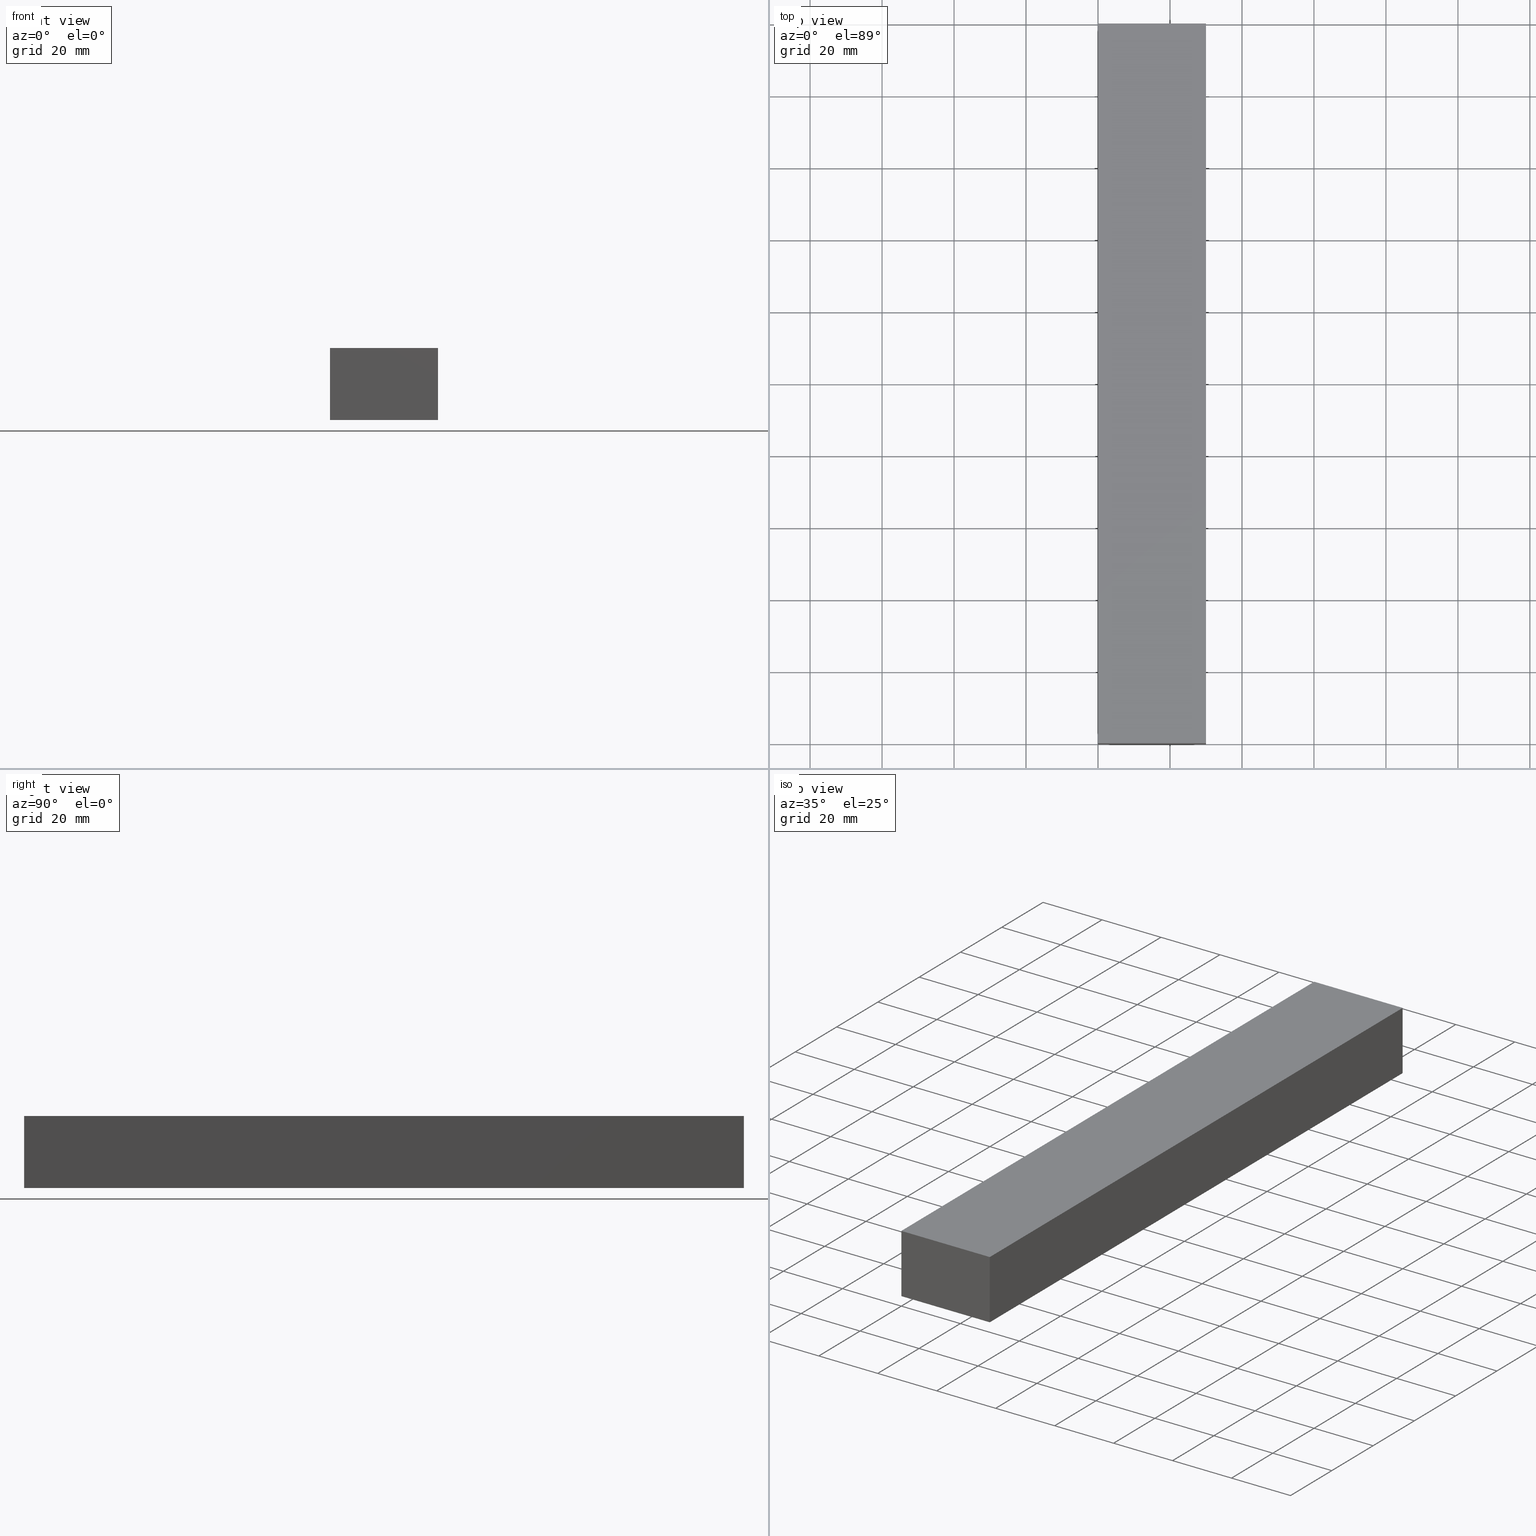
[diagram: canonical four-view strip — front | top / right | iso, engineering-drawing reading convention]
A machine part, canonical four-view strip (front | top / right | iso — engineering-drawing reading convention). The complete STEP part file that produces these views, byte-faithful:
ISO-10303-21;
HEADER;
FILE_DESCRIPTION (( 'STEP AP214' ),
    '1' );
FILE_NAME ('TM_340W_18.STEP',
    '2016-05-09T08:11:36',
    ( '' ),
    ( '' ),
    'SwSTEP 2.0',
    'SolidWorks 2015',
    '' );
FILE_SCHEMA (( 'AUTOMOTIVE_DESIGN' ));
ENDSEC;

DATA;
#1 = DIRECTION ( 'NONE',  ( 0.0000000000000000000, 0.0000000000000000000, 1.000000000000000000 ) ) ;
#2 = VECTOR ( 'NONE', #78, 1000.000000000000000 ) ;
#3 = ORIENTED_EDGE ( 'NONE', *, *, #127, .F. ) ;
#4 = AXIS2_PLACEMENT_3D ( 'NONE', #168, #38, #77 ) ;
#5 = PRODUCT ( 'TM_340W_18', 'TM_340W_18', '', ( #119 ) ) ;
#6 = EDGE_LOOP ( 'NONE', ( #106, #48, #93, #238 ) ) ;
#7 = PRODUCT_DEFINITION_SHAPE ( 'NONE', 'NONE',  #59 ) ;
#8 = LINE ( 'NONE', #63, #120 ) ;
#9 =( NAMED_UNIT ( * ) SI_UNIT ( $, .STERADIAN. ) SOLID_ANGLE_UNIT ( ) );
#10 = EDGE_CURVE ( 'NONE', #144, #17, #163, .T. ) ;
#11 = ORIENTED_EDGE ( 'NONE', *, *, #70, .T. ) ;
#12 = PLANE ( 'NONE',  #160 ) ;
#13 = STYLED_ITEM ( 'NONE', ( #122 ), #117 ) ;
#14 = DIRECTION ( 'NONE',  ( 1.000000000000000000, 0.0000000000000000000, 0.0000000000000000000 ) ) ;
#15 = AXIS2_PLACEMENT_3D ( 'NONE', #179, #96, #195 ) ;
#16 = ADVANCED_FACE ( 'NONE', ( #226 ), #12, .T. ) ;
#17 = VERTEX_POINT ( 'NONE', #234 ) ;
#18 =( NAMED_UNIT ( * ) PLANE_ANGLE_UNIT ( ) SI_UNIT ( $, .RADIAN. ) );
#19 = DIRECTION ( 'NONE',  ( 0.0000000000000000000, 1.000000000000000000, 0.0000000000000000000 ) ) ;
#20 = DIRECTION ( 'NONE',  ( 0.0000000000000000000, 0.0000000000000000000, 1.000000000000000000 ) ) ;
#21 = VERTEX_POINT ( 'NONE', #97 ) ;
#22 = PLANE ( 'NONE',  #26 ) ;
#23 = LINE ( 'NONE', #37, #108 ) ;
#24 = ORIENTED_EDGE ( 'NONE', *, *, #200, .F. ) ;
#25 = VECTOR ( 'NONE', #155, 1000.000000000000000 ) ;
#26 = AXIS2_PLACEMENT_3D ( 'NONE', #202, #141, #39 ) ;
#27 = SHAPE_REPRESENTATION_RELATIONSHIP ( 'NONE' , 'NONE' ,  #204, #49 ) ;
#28 = VECTOR ( 'NONE', #216, 1000.000000000000000 ) ;
#29 = PRODUCT_DEFINITION_CONTEXT ( 'detailed design', #206, 'design' ) ;
#30 =( GEOMETRIC_REPRESENTATION_CONTEXT ( 3 ) GLOBAL_UNCERTAINTY_ASSIGNED_CONTEXT ( ( #133 ) ) GLOBAL_UNIT_ASSIGNED_CONTEXT ( ( #113, #177, #82 ) ) REPRESENTATION_CONTEXT ( 'NONE', 'WORKASPACE' ) );
#31 = CARTESIAN_POINT ( 'NONE',  ( 0.0000000000000000000, 0.0000000000000000000, 10.00000000000000000 ) ) ;
#32 = ORIENTED_EDGE ( 'NONE', *, *, #158, .F. ) ;
#33 = FILL_AREA_STYLE ('',( #231 ) ) ;
#34 = APPLICATION_PROTOCOL_DEFINITION ( 'draft international standard', 'automotive_design', 1998, #85 ) ;
#35 = ORIENTED_EDGE ( 'NONE', *, *, #159, .T. ) ;
#36 = ADVANCED_FACE ( 'NONE', ( #84 ), #22, .F. ) ;
#37 = CARTESIAN_POINT ( 'NONE',  ( 0.0000000000000000000, 0.0000000000000000000, 10.00000000000000000 ) ) ;
#38 = DIRECTION ( 'NONE',  ( 0.0000000000000000000, 0.0000000000000000000, 1.000000000000000000 ) ) ;
#39 = DIRECTION ( 'NONE',  ( 1.000000000000000000, 0.0000000000000000000, 0.0000000000000000000 ) ) ;
#40 = DIRECTION ( 'NONE',  ( 0.0000000000000000000, 0.0000000000000000000, 1.000000000000000000 ) ) ;
#41 = VECTOR ( 'NONE', #185, 1000.000000000000000 ) ;
#42 = PRESENTATION_LAYER_ASSIGNMENT (  '', '', ( #13 ) ) ;
#43 = CARTESIAN_POINT ( 'NONE',  ( 0.0000000000000000000, 0.0000000000000000000, -10.00000000000000000 ) ) ;
#44 = PRODUCT_DEFINITION_CONTEXT ( 'detailed design', #85, 'design' ) ;
#45 = ORIENTED_EDGE ( 'NONE', *, *, #124, .T. ) ;
#46 = AXIS2_PLACEMENT_3D ( 'NONE', #211, #143, #183 ) ;
#47 = SHAPE_REPRESENTATION ( 'TM_340W_18', ( #46, #15 ), #30 ) ;
#48 = ORIENTED_EDGE ( 'NONE', *, *, #229, .F. ) ;
#49 = ADVANCED_BREP_SHAPE_REPRESENTATION ( '', ( #117, #186 ), #166 ) ;
#50 = VERTEX_POINT ( 'NONE', #99 ) ;
#51 = DIRECTION ( 'NONE',  ( -1.000000000000000000, 0.0000000000000000000, 0.0000000000000000000 ) ) ;
#52 = CARTESIAN_POINT ( 'NONE',  ( 30.00000000000000000, 0.0000000000000000000, -10.00000000000000000 ) ) ;
#53 =( NAMED_UNIT ( * ) PLANE_ANGLE_UNIT ( ) SI_UNIT ( $, .RADIAN. ) );
#54 = SURFACE_STYLE_USAGE ( .BOTH. , #146 ) ;
#55 = MECHANICAL_DESIGN_GEOMETRIC_PRESENTATION_REPRESENTATION (  '', ( #13 ), #68 ) ;
#56 = EDGE_LOOP ( 'NONE', ( #80, #192, #62, #210 ) ) ;
#57 = DIRECTION ( 'NONE',  ( 0.0000000000000000000, 0.0000000000000000000, 1.000000000000000000 ) ) ;
#58 = LINE ( 'NONE', #87, #2 ) ;
#59 = PRODUCT_DEFINITION ( 'UNKNOWN', '', #64, #29 ) ;
#60 = COLOUR_RGB ( '',0.7921568627450980000, 0.8196078431372548800, 0.9294117647058823800 ) ;
#61 = DIRECTION ( 'NONE',  ( 0.0000000000000000000, 1.000000000000000000, 0.0000000000000000000 ) ) ;
#62 = ORIENTED_EDGE ( 'NONE', *, *, #10, .F. ) ;
#63 = CARTESIAN_POINT ( 'NONE',  ( 30.00000000000000000, 0.0000000000000000000, 10.00000000000000000 ) ) ;
#64 = PRODUCT_DEFINITION_FORMATION_WITH_SPECIFIED_SOURCE ( 'ANY', '', #225, .NOT_KNOWN. ) ;
#65 =( LENGTH_UNIT ( ) NAMED_UNIT ( * ) SI_UNIT ( .MILLI., .METRE. ) );
#66 = FILL_AREA_STYLE_COLOUR ( '', #67 ) ;
#67 = COLOUR_RGB ( '',0.7921568627450980000, 0.8196078431372548800, 0.9294117647058823800 ) ;
#68 =( GEOMETRIC_REPRESENTATION_CONTEXT ( 3 ) GLOBAL_UNCERTAINTY_ASSIGNED_CONTEXT ( ( #79 ) ) GLOBAL_UNIT_ASSIGNED_CONTEXT ( ( #65, #81, #9 ) ) REPRESENTATION_CONTEXT ( 'NONE', 'WORKASPACE' ) );
#69 = SURFACE_STYLE_FILL_AREA ( #33 ) ;
#70 = EDGE_CURVE ( 'NONE', #156, #50, #128, .T. ) ;
#71 = EDGE_LOOP ( 'NONE', ( #176, #126, #11, #182 ) ) ;
#72 = PLANE ( 'NONE',  #135 ) ;
#73 = CARTESIAN_POINT ( 'NONE',  ( 0.0000000000000000000, 200.0000000000000000, 10.00000000000000000 ) ) ;
#74 = PRODUCT_RELATED_PRODUCT_CATEGORY ( 'part', '', ( #225 ) ) ;
#75 = ORIENTED_EDGE ( 'NONE', *, *, #205, .T. ) ;
#76 = DIRECTION ( 'NONE',  ( 0.0000000000000000000, 0.0000000000000000000, 1.000000000000000000 ) ) ;
#77 = DIRECTION ( 'NONE',  ( 1.000000000000000000, 0.0000000000000000000, 0.0000000000000000000 ) ) ;
#78 = DIRECTION ( 'NONE',  ( 1.000000000000000000, 0.0000000000000000000, 0.0000000000000000000 ) ) ;
#79 = UNCERTAINTY_MEASURE_WITH_UNIT (LENGTH_MEASURE( 1.000000000000000100E-005 ), #65, 'distance_accuracy_value', 'NONE');
#80 = ORIENTED_EDGE ( 'NONE', *, *, #70, .F. ) ;
#81 =( NAMED_UNIT ( * ) PLANE_ANGLE_UNIT ( ) SI_UNIT ( $, .RADIAN. ) );
#82 =( NAMED_UNIT ( * ) SI_UNIT ( $, .STERADIAN. ) SOLID_ANGLE_UNIT ( ) );
#83 = DIRECTION ( 'NONE',  ( 1.000000000000000000, 0.0000000000000000000, 0.0000000000000000000 ) ) ;
#84 = FACE_OUTER_BOUND ( 'NONE', #56, .T. ) ;
#85 = APPLICATION_CONTEXT ( 'automotive_design' ) ;
#86 = FACE_OUTER_BOUND ( 'NONE', #212, .T. ) ;
#87 = CARTESIAN_POINT ( 'NONE',  ( 0.0000000000000000000, 0.0000000000000000000, -10.00000000000000000 ) ) ;
#88 = PRODUCT_DEFINITION ( 'UNKNOWN', '', #100, #44 ) ;
#89 = CLOSED_SHELL ( 'NONE', ( #16, #196, #209, #140, #36, #130 ) ) ;
#90 = VECTOR ( 'NONE', #51, 1000.000000000000000 ) ;
#91 = LINE ( 'NONE', #150, #41 ) ;
#92 = VECTOR ( 'NONE', #20, 1000.000000000000000 ) ;
#93 = ORIENTED_EDGE ( 'NONE', *, *, #10, .T. ) ;
#94 = FACE_OUTER_BOUND ( 'NONE', #233, .T. ) ;
#95 = CARTESIAN_POINT ( 'NONE',  ( 30.00000000000000000, 0.0000000000000000000, -10.00000000000000000 ) ) ;
#96 = DIRECTION ( 'NONE',  ( 0.0000000000000000000, 0.0000000000000000000, 1.000000000000000000 ) ) ;
#97 = CARTESIAN_POINT ( 'NONE',  ( 30.00000000000000000, 200.0000000000000000, 10.00000000000000000 ) ) ;
#98 = VERTEX_POINT ( 'NONE', #105 ) ;
#99 = CARTESIAN_POINT ( 'NONE',  ( 0.0000000000000000000, 0.0000000000000000000, -10.00000000000000000 ) ) ;
#100 = PRODUCT_DEFINITION_FORMATION_WITH_SPECIFIED_SOURCE ( 'ANY', '', #5, .NOT_KNOWN. ) ;
#101 = APPLICATION_PROTOCOL_DEFINITION ( 'draft international standard', 'automotive_design', 1998, #218 ) ;
#102 = CARTESIAN_POINT ( 'NONE',  ( 30.00000000000000000, 0.0000000000000000000, -10.00000000000000000 ) ) ;
#103 = DIRECTION ( 'NONE',  ( 1.000000000000000000, 0.0000000000000000000, 0.0000000000000000000 ) ) ;
#104 = FACE_OUTER_BOUND ( 'NONE', #224, .T. ) ;
#105 = CARTESIAN_POINT ( 'NONE',  ( 0.0000000000000000000, 200.0000000000000000, 10.00000000000000000 ) ) ;
#106 = ORIENTED_EDGE ( 'NONE', *, *, #205, .F. ) ;
#107 = APPLICATION_PROTOCOL_DEFINITION ( 'draft international standard', 'automotive_design', 1998, #206 ) ;
#108 = VECTOR ( 'NONE', #103, 1000.000000000000000 ) ;
#109 = SHAPE_DEFINITION_REPRESENTATION ( #7, #204 ) ;
#110 = AXIS2_PLACEMENT_3D ( 'NONE', #165, #148, #14 ) ;
#111 = ORIENTED_EDGE ( 'NONE', *, *, #229, .T. ) ;
#112 = PRODUCT_RELATED_PRODUCT_CATEGORY ( 'part', '', ( #5 ) ) ;
#113 =( LENGTH_UNIT ( ) NAMED_UNIT ( * ) SI_UNIT ( .MILLI., .METRE. ) );
#114 = APPLICATION_CONTEXT ( 'automotive_design' ) ;
#115 = DIRECTION ( 'NONE',  ( -1.000000000000000000, 0.0000000000000000000, 0.0000000000000000000 ) ) ;
#116 = DIRECTION ( 'NONE',  ( 0.0000000000000000000, -1.000000000000000000, 0.0000000000000000000 ) ) ;
#117 = MANIFOLD_SOLID_BREP ( '���߰�1', #89 ) ;
#118 = CARTESIAN_POINT ( 'NONE',  ( 30.00000000000000000, 200.0000000000000000, -10.00000000000000000 ) ) ;
#119 = PRODUCT_CONTEXT ( 'NONE', #218, 'mechanical' ) ;
#120 = VECTOR ( 'NONE', #219, 1000.000000000000000 ) ;
#121 = PLANE ( 'NONE',  #175 ) ;
#122 = PRESENTATION_STYLE_ASSIGNMENT (( #123 ) ) ;
#123 = SURFACE_STYLE_USAGE ( .BOTH. , #223 ) ;
#124 = EDGE_CURVE ( 'NONE', #50, #144, #58, .T. ) ;
#125 = UNCERTAINTY_MEASURE_WITH_UNIT (LENGTH_MEASURE( 1.000000000000000100E-005 ), #131, 'distance_accuracy_value', 'NONE');
#126 = ORIENTED_EDGE ( 'NONE', *, *, #213, .F. ) ;
#127 = EDGE_CURVE ( 'NONE', #50, #138, #153, .T. ) ;
#128 = LINE ( 'NONE', #172, #25 ) ;
#129 = LINE ( 'NONE', #197, #142 ) ;
#130 = ADVANCED_FACE ( 'NONE', ( #94 ), #145, .T. ) ;
#131 =( LENGTH_UNIT ( ) NAMED_UNIT ( * ) SI_UNIT ( .MILLI., .METRE. ) );
#132 = DIRECTION ( 'NONE',  ( 1.000000000000000000, 0.0000000000000000000, 0.0000000000000000000 ) ) ;
#133 = UNCERTAINTY_MEASURE_WITH_UNIT (LENGTH_MEASURE( 1.000000000000000100E-005 ), #113, 'distance_accuracy_value', 'NONE');
#134 = CARTESIAN_POINT ( 'NONE',  ( 0.0000000000000000000, 0.0000000000000000000, -10.00000000000000000 ) ) ;
#135 = AXIS2_PLACEMENT_3D ( 'NONE', #134, #116, #236 ) ;
#136 = APPLICATION_PROTOCOL_DEFINITION ( 'draft international standard', 'automotive_design', 1998, #114 ) ;
#137 = EDGE_CURVE ( 'NONE', #98, #138, #164, .T. ) ;
#138 = VERTEX_POINT ( 'NONE', #31 ) ;
#139 = CARTESIAN_POINT ( 'NONE',  ( 0.0000000000000000000, 200.0000000000000000, -10.00000000000000000 ) ) ;
#140 = ADVANCED_FACE ( 'NONE', ( #86 ), #72, .T. ) ;
#141 = DIRECTION ( 'NONE',  ( 0.0000000000000000000, 0.0000000000000000000, 1.000000000000000000 ) ) ;
#142 = VECTOR ( 'NONE', #198, 1000.000000000000000 ) ;
#143 = DIRECTION ( 'NONE',  ( 0.0000000000000000000, 0.0000000000000000000, 1.000000000000000000 ) ) ;
#144 = VERTEX_POINT ( 'NONE', #232 ) ;
#145 = PLANE ( 'NONE',  #110 ) ;
#146 = SURFACE_SIDE_STYLE ('',( #69 ) ) ;
#147 = PRODUCT_DEFINITION_SHAPE ( 'NONE', 'NONE',  #88 ) ;
#148 = DIRECTION ( 'NONE',  ( 0.0000000000000000000, 0.0000000000000000000, 1.000000000000000000 ) ) ;
#149 = ORIENTED_EDGE ( 'NONE', *, *, #217, .T. ) ;
#150 = CARTESIAN_POINT ( 'NONE',  ( 30.00000000000000000, 200.0000000000000000, 10.00000000000000000 ) ) ;
#151 =( LENGTH_UNIT ( ) NAMED_UNIT ( * ) SI_UNIT ( .MILLI., .METRE. ) );
#152 = VECTOR ( 'NONE', #57, 1000.000000000000000 ) ;
#153 = LINE ( 'NONE', #43, #92 ) ;
#154 = SHAPE_DEFINITION_REPRESENTATION ( #147, #47 ) ;
#155 = DIRECTION ( 'NONE',  ( 0.0000000000000000000, -1.000000000000000000, 0.0000000000000000000 ) ) ;
#156 = VERTEX_POINT ( 'NONE', #139 ) ;
#157 = AXIS2_PLACEMENT_3D ( 'NONE', #199, #19, #1 ) ;
#158 = EDGE_CURVE ( 'NONE', #138, #189, #23, .T. ) ;
#159 = EDGE_CURVE ( 'NONE', #21, #98, #91, .T. ) ;
#160 = AXIS2_PLACEMENT_3D ( 'NONE', #171, #115, #40 ) ;
#161 = DIRECTION ( 'NONE',  ( 0.0000000000000000000, 0.0000000000000000000, 1.000000000000000000 ) ) ;
#162 =( NAMED_UNIT ( * ) SI_UNIT ( $, .STERADIAN. ) SOLID_ANGLE_UNIT ( ) );
#163 = LINE ( 'NONE', #52, #208 ) ;
#164 = LINE ( 'NONE', #73, #28 ) ;
#165 = CARTESIAN_POINT ( 'NONE',  ( 0.0000000000000000000, 0.0000000000000000000, 10.00000000000000000 ) ) ;
#166 =( GEOMETRIC_REPRESENTATION_CONTEXT ( 3 ) GLOBAL_UNCERTAINTY_ASSIGNED_CONTEXT ( ( #125 ) ) GLOBAL_UNIT_ASSIGNED_CONTEXT ( ( #131, #53, #162 ) ) REPRESENTATION_CONTEXT ( 'NONE', 'WORKASPACE' ) );
#167 = ORIENTED_EDGE ( 'NONE', *, *, #213, .T. ) ;
#168 = CARTESIAN_POINT ( 'NONE',  ( 0.0000000000000000000, 0.0000000000000000000, 0.0000000000000000000 ) ) ;
#169 = PLANE ( 'NONE',  #157 ) ;
#170 = SURFACE_STYLE_FILL_AREA ( #220 ) ;
#171 = CARTESIAN_POINT ( 'NONE',  ( 0.0000000000000000000, 200.0000000000000000, -10.00000000000000000 ) ) ;
#172 = CARTESIAN_POINT ( 'NONE',  ( 0.0000000000000000000, 200.0000000000000000, -10.00000000000000000 ) ) ;
#173 = STYLED_ITEM ( 'NONE', ( #191 ), #49 ) ;
#174 = PRODUCT_DEFINITION_SHAPE ( 'NONE', 'NONE',  #239 ) ;
#175 = AXIS2_PLACEMENT_3D ( 'NONE', #102, #83, #184 ) ;
#176 = ORIENTED_EDGE ( 'NONE', *, *, #137, .F. ) ;
#177 =( NAMED_UNIT ( * ) PLANE_ANGLE_UNIT ( ) SI_UNIT ( $, .RADIAN. ) );
#178 = FACE_OUTER_BOUND ( 'NONE', #6, .T. ) ;
#179 = CARTESIAN_POINT ( 'NONE',  ( 0.0000000000000000000, 0.0000000000000000000, 0.0000000000000000000 ) ) ;
#180 = CARTESIAN_POINT ( 'NONE',  ( 30.00000000000000000, 0.0000000000000000000, 10.00000000000000000 ) ) ;
#181 = PRESENTATION_LAYER_ASSIGNMENT (  '', '', ( #173 ) ) ;
#182 = ORIENTED_EDGE ( 'NONE', *, *, #127, .T. ) ;
#183 = DIRECTION ( 'NONE',  ( 1.000000000000000000, 0.0000000000000000000, 0.0000000000000000000 ) ) ;
#184 = DIRECTION ( 'NONE',  ( 0.0000000000000000000, 0.0000000000000000000, -1.000000000000000000 ) ) ;
#185 = DIRECTION ( 'NONE',  ( -1.000000000000000000, 0.0000000000000000000, 0.0000000000000000000 ) ) ;
#186 = AXIS2_PLACEMENT_3D ( 'NONE', #194, #76, #132 ) ;
#187 = ORIENTED_EDGE ( 'NONE', *, *, #159, .F. ) ;
#188 = ORIENTED_EDGE ( 'NONE', *, *, #158, .T. ) ;
#189 = VERTEX_POINT ( 'NONE', #180 ) ;
#190 = MECHANICAL_DESIGN_GEOMETRIC_PRESENTATION_REPRESENTATION (  '', ( #173 ), #203 ) ;
#191 = PRESENTATION_STYLE_ASSIGNMENT (( #54 ) ) ;
#192 = ORIENTED_EDGE ( 'NONE', *, *, #217, .F. ) ;
#193 = ITEM_DEFINED_TRANSFORMATION ( 'NONE', 'NONE', #15,  #186 ) ;
#194 = CARTESIAN_POINT ( 'NONE',  ( 0.0000000000000000000, 0.0000000000000000000, 0.0000000000000000000 ) ) ;
#195 = DIRECTION ( 'NONE',  ( 1.000000000000000000, 0.0000000000000000000, 0.0000000000000000000 ) ) ;
#196 = ADVANCED_FACE ( 'NONE', ( #104 ), #169, .T. ) ;
#197 = CARTESIAN_POINT ( 'NONE',  ( 0.0000000000000000000, 200.0000000000000000, -10.00000000000000000 ) ) ;
#198 = DIRECTION ( 'NONE',  ( 0.0000000000000000000, 0.0000000000000000000, 1.000000000000000000 ) ) ;
#199 = CARTESIAN_POINT ( 'NONE',  ( 30.00000000000000000, 200.0000000000000000, -10.00000000000000000 ) ) ;
#200 = EDGE_CURVE ( 'NONE', #17, #21, #222, .T. ) ;
#201 = PRODUCT_CONTEXT ( 'NONE', #114, 'mechanical' ) ;
#202 = CARTESIAN_POINT ( 'NONE',  ( 0.0000000000000000000, 0.0000000000000000000, -10.00000000000000000 ) ) ;
#203 =( GEOMETRIC_REPRESENTATION_CONTEXT ( 3 ) GLOBAL_UNCERTAINTY_ASSIGNED_CONTEXT ( ( #215 ) ) GLOBAL_UNIT_ASSIGNED_CONTEXT ( ( #151, #18, #237 ) ) REPRESENTATION_CONTEXT ( 'NONE', 'WORKASPACE' ) );
#204 = SHAPE_REPRESENTATION ( 'rubber foam', ( #186 ), #166 ) ;
#205 = EDGE_CURVE ( 'NONE', #189, #21, #8, .T. ) ;
#206 = APPLICATION_CONTEXT ( 'automotive_design' ) ;
#207 = VECTOR ( 'NONE', #161, 1000.000000000000000 ) ;
#208 = VECTOR ( 'NONE', #61, 1000.000000000000000 ) ;
#209 = ADVANCED_FACE ( 'NONE', ( #178 ), #121, .T. ) ;
#210 = ORIENTED_EDGE ( 'NONE', *, *, #124, .F. ) ;
#211 = CARTESIAN_POINT ( 'NONE',  ( 0.0000000000000000000, 0.0000000000000000000, 0.0000000000000000000 ) ) ;
#212 = EDGE_LOOP ( 'NONE', ( #32, #3, #45, #111 ) ) ;
#213 = EDGE_CURVE ( 'NONE', #156, #98, #129, .T. ) ;
#214 = LINE ( 'NONE', #118, #90 ) ;
#215 = UNCERTAINTY_MEASURE_WITH_UNIT (LENGTH_MEASURE( 1.000000000000000100E-005 ), #151, 'distance_accuracy_value', 'NONE');
#216 = DIRECTION ( 'NONE',  ( 0.0000000000000000000, -1.000000000000000000, 0.0000000000000000000 ) ) ;
#217 = EDGE_CURVE ( 'NONE', #17, #156, #214, .T. ) ;
#218 = APPLICATION_CONTEXT ( 'automotive_design' ) ;
#219 = DIRECTION ( 'NONE',  ( 0.0000000000000000000, 1.000000000000000000, 0.0000000000000000000 ) ) ;
#220 = FILL_AREA_STYLE ('',( #66 ) ) ;
#221 = LINE ( 'NONE', #95, #207 ) ;
#222 = LINE ( 'NONE', #230, #152 ) ;
#223 = SURFACE_SIDE_STYLE ('',( #170 ) ) ;
#224 = EDGE_LOOP ( 'NONE', ( #187, #24, #149, #167 ) ) ;
#225 = PRODUCT ( 'rubber foam', 'rubber foam', '', ( #201 ) ) ;
#226 = FACE_OUTER_BOUND ( 'NONE', #71, .T. ) ;
#227 =( REPRESENTATION_RELATIONSHIP ('NONE','NONE', #47, #204 ) REPRESENTATION_RELATIONSHIP_WITH_TRANSFORMATION ( #193 )SHAPE_REPRESENTATION_RELATIONSHIP( ) );
#228 = ORIENTED_EDGE ( 'NONE', *, *, #137, .T. ) ;
#229 = EDGE_CURVE ( 'NONE', #144, #189, #221, .T. ) ;
#230 = CARTESIAN_POINT ( 'NONE',  ( 30.00000000000000000, 200.0000000000000000, -10.00000000000000000 ) ) ;
#231 = FILL_AREA_STYLE_COLOUR ( '', #60 ) ;
#232 = CARTESIAN_POINT ( 'NONE',  ( 30.00000000000000000, 0.0000000000000000000, -10.00000000000000000 ) ) ;
#233 = EDGE_LOOP ( 'NONE', ( #228, #188, #75, #35 ) ) ;
#234 = CARTESIAN_POINT ( 'NONE',  ( 30.00000000000000000, 200.0000000000000000, -10.00000000000000000 ) ) ;
#235 = CONTEXT_DEPENDENT_SHAPE_REPRESENTATION ( #227, #174 ) ;
#236 = DIRECTION ( 'NONE',  ( 0.0000000000000000000, 0.0000000000000000000, -1.000000000000000000 ) ) ;
#237 =( NAMED_UNIT ( * ) SI_UNIT ( $, .STERADIAN. ) SOLID_ANGLE_UNIT ( ) );
#238 = ORIENTED_EDGE ( 'NONE', *, *, #200, .T. ) ;
#239 = NEXT_ASSEMBLY_USAGE_OCCURRENCE ( 'NAUO1', ' ', ' ', #88, #59, $ ) ;
ENDSEC;
END-ISO-10303-21;
